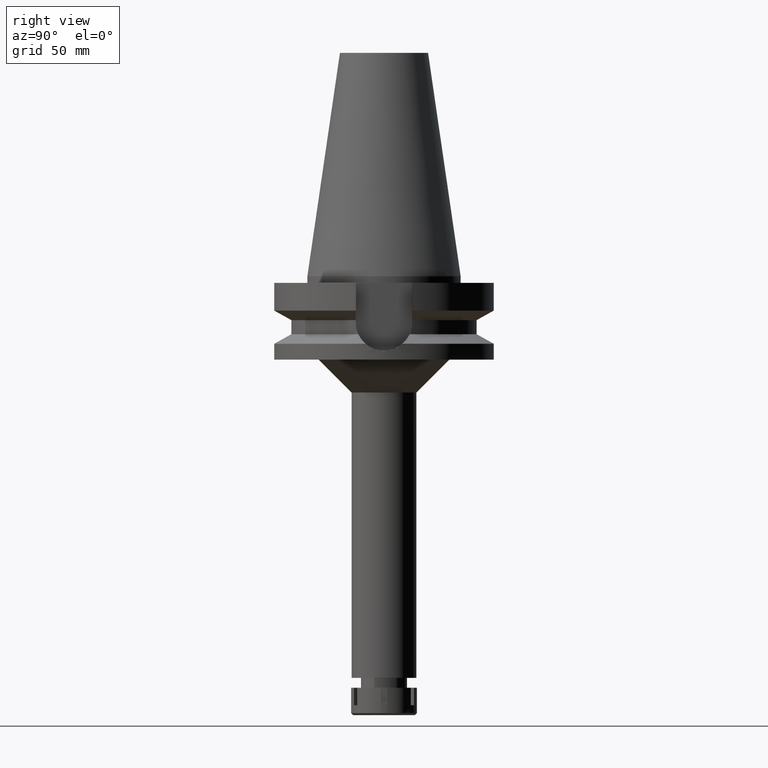
[diagram: clean part render]
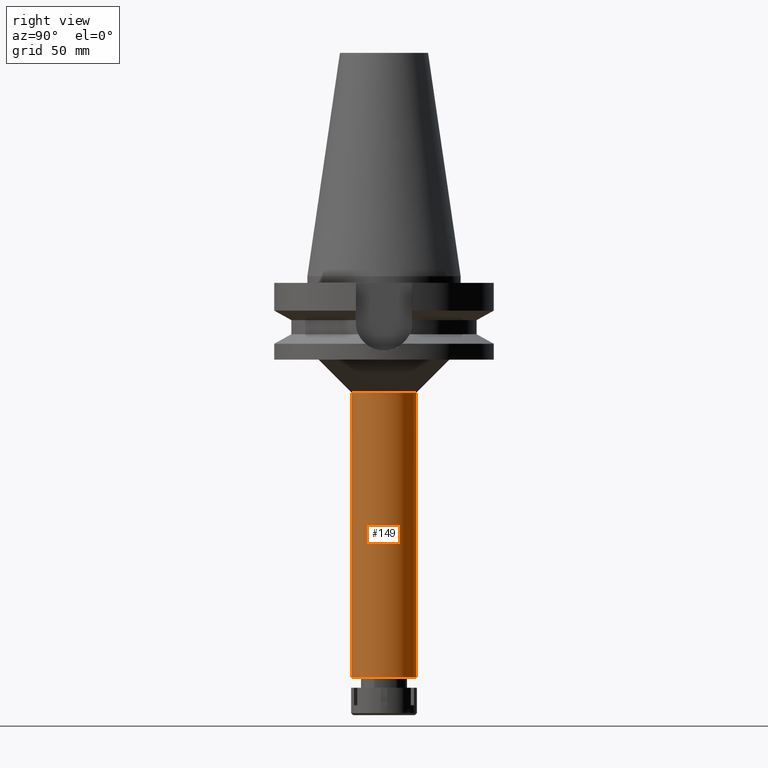
[diagram: same view with one face highlighted and labeled with its STEP entity id]
A machine part, right view. The second image highlights one B-rep face of the part: STEP entity #149.
In plain terms, the highlighted cylindrical surface (edge-blend (fillet) strip) has radius 14.75 mm, axis along (0, 0, -1).
Its self-contained STEP definition (entity closure, byte-faithful):
#149 = ADVANCED_FACE ( 'NONE', ( #3364 ), #806, .T. ) ;
#379 = CARTESIAN_POINT ( 'NONE',  ( 0.0000000000000000000, 2.651850178873999682E-14, -183.0000000000000000 ) ) ;
#595 = LINE ( 'NONE', #1955, #3053 ) ;
#630 = ORIENTED_EDGE ( 'NONE', *, *, #3455, .T. ) ;
#656 = CIRCLE ( 'NONE', #1662, 14.75000000000000000 ) ;
#806 = CYLINDRICAL_SURFACE ( 'NONE', #3097, 14.75000000000000000 ) ;
#897 = VERTEX_POINT ( 'NONE', #2241 ) ;
#986 = CARTESIAN_POINT ( 'NONE',  ( 0.0000000000000000000, 14.75000000000000000, -53.00000000000000000 ) ) ;
#1025 = AXIS2_PLACEMENT_3D ( 'NONE', #1828, #2303, #1758 ) ;
#1063 = DIRECTION ( 'NONE',  ( 0.0000000000000000000, -1.000000000000000000, 0.0000000000000000000 ) ) ;
#1113 = EDGE_CURVE ( 'NONE', #3545, #897, #656, .T. ) ;
#1135 = CARTESIAN_POINT ( 'NONE',  ( 0.0000000000000000000, 2.651850178873999682E-14, 116.5400000000000063 ) ) ;
#1507 = DIRECTION ( 'NONE',  ( 0.0000000000000000000, -1.000000000000000000, 0.0000000000000000000 ) ) ;
#1530 = CARTESIAN_POINT ( 'NONE',  ( 0.0000000000000000000, -14.75000000000000000, -183.0000000000000000 ) ) ;
#1564 = VECTOR ( 'NONE', #1648, 1000.000000000000000 ) ;
#1625 = DIRECTION ( 'NONE',  ( 0.0000000000000000000, 0.0000000000000000000, -1.000000000000000000 ) ) ;
#1648 = DIRECTION ( 'NONE',  ( 0.0000000000000000000, 0.0000000000000000000, -1.000000000000000000 ) ) ;
#1662 = AXIS2_PLACEMENT_3D ( 'NONE', #379, #3222, #1507 ) ;
#1743 = DIRECTION ( 'NONE',  ( 0.0000000000000000000, 0.0000000000000000000, -1.000000000000000000 ) ) ;
#1758 = DIRECTION ( 'NONE',  ( 0.0000000000000000000, 1.000000000000000000, 0.0000000000000000000 ) ) ;
#1828 = CARTESIAN_POINT ( 'NONE',  ( 0.0000000000000000000, 0.0000000000000000000, -53.00000000000000000 ) ) ;
#1856 = CARTESIAN_POINT ( 'NONE',  ( 0.0000000000000000000, 14.75000000000000000, -53.00000000000000000 ) ) ;
#1872 = VERTEX_POINT ( 'NONE', #1856 ) ;
#1955 = CARTESIAN_POINT ( 'NONE',  ( 0.0000000000000000000, -14.75000000000000000, -53.00000000000000000 ) ) ;
#1957 = CIRCLE ( 'NONE', #1025, 14.75000000000000000 ) ;
#2178 = EDGE_CURVE ( 'NONE', #1872, #2183, #1957, .T. ) ;
#2183 = VERTEX_POINT ( 'NONE', #3457 ) ;
#2241 = CARTESIAN_POINT ( 'NONE',  ( 0.0000000000000000000, 14.75000000000000000, -183.0000000000000000 ) ) ;
#2303 = DIRECTION ( 'NONE',  ( 0.0000000000000000000, 0.0000000000000000000, -1.000000000000000000 ) ) ;
#2842 = EDGE_LOOP ( 'NONE', ( #3189, #630, #3360, #2985 ) ) ;
#2985 = ORIENTED_EDGE ( 'NONE', *, *, #3272, .F. ) ;
#3053 = VECTOR ( 'NONE', #1743, 1000.000000000000000 ) ;
#3097 = AXIS2_PLACEMENT_3D ( 'NONE', #1135, #1625, #1063 ) ;
#3189 = ORIENTED_EDGE ( 'NONE', *, *, #2178, .T. ) ;
#3222 = DIRECTION ( 'NONE',  ( 0.0000000000000000000, 0.0000000000000000000, 1.000000000000000000 ) ) ;
#3272 = EDGE_CURVE ( 'NONE', #1872, #897, #3543, .T. ) ;
#3360 = ORIENTED_EDGE ( 'NONE', *, *, #1113, .T. ) ;
#3364 = FACE_OUTER_BOUND ( 'NONE', #2842, .T. ) ;
#3455 = EDGE_CURVE ( 'NONE', #2183, #3545, #595, .T. ) ;
#3457 = CARTESIAN_POINT ( 'NONE',  ( 0.0000000000000000000, -14.75000000000000000, -53.00000000000000000 ) ) ;
#3543 = LINE ( 'NONE', #986, #1564 ) ;
#3545 = VERTEX_POINT ( 'NONE', #1530 ) ;